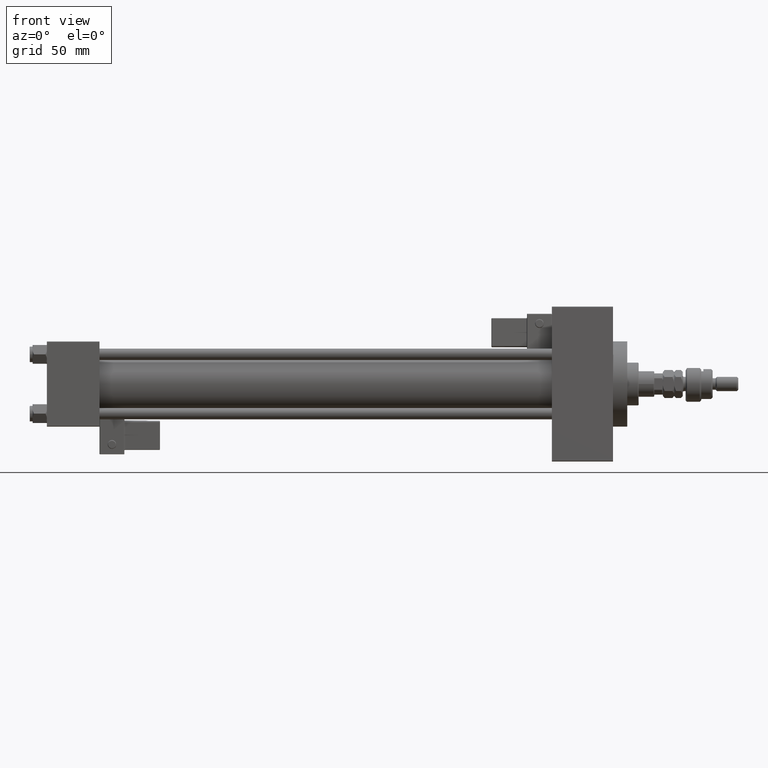
[diagram: clean part render]
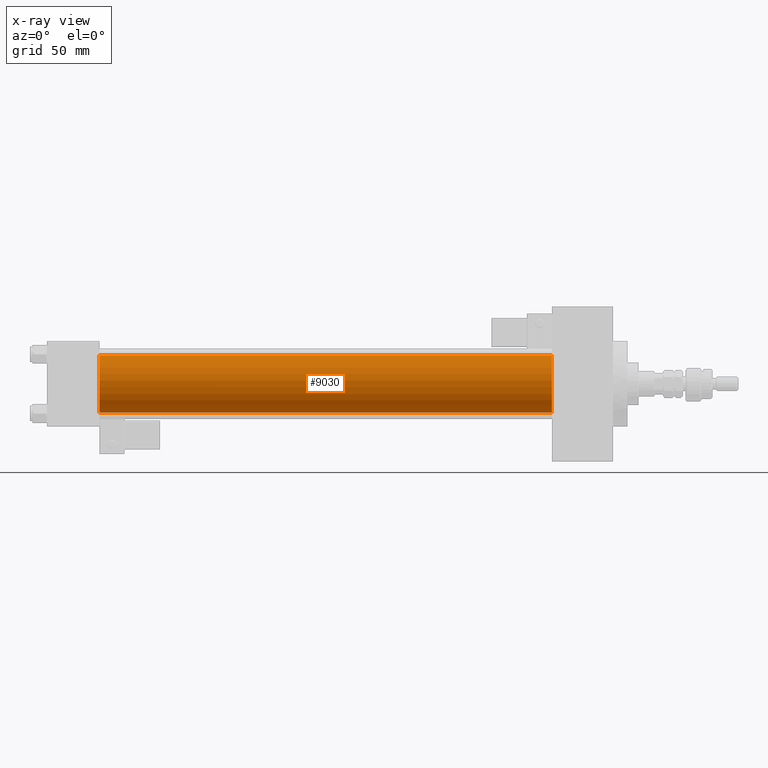
[diagram: x-ray — body ghosted, one internal face saturated and labeled with its STEP entity id]
A machine part, front view, then the same camera in x-ray: the body is ghosted and one INTERNAL B-rep face — a face not visible from any outside direction — is saturated and labeled: STEP entity #9030.
In plain terms, the highlighted cylindrical surface (edge-blend (fillet) strip) has radius 20 mm, axis along (-1, -0, -0).
Its self-contained STEP definition (entity closure, byte-faithful):
#81 = CARTESIAN_POINT ( 'NONE',  ( 355.0000000000000000, -2.602085213965210642E-15, 0.000000000000000000 ) ) ;
#1178 = EDGE_LOOP ( 'NONE', ( #40628, #31670, #28590, #48487 ) ) ;
#1850 = CARTESIAN_POINT ( 'NONE',  ( 355.0000000000000000, -1.527916156705046464E-16, -20.00000000000000000 ) ) ;
#2627 = EDGE_CURVE ( 'NONE', #32880, #49502, #15687, .T. ) ;
#4193 = DIRECTION ( 'NONE',  ( -1.000000000000000000, -0.000000000000000000, -0.000000000000000000 ) ) ;
#7221 = CARTESIAN_POINT ( 'NONE',  ( 355.0000000000000000, -2.602085213965210642E-15, 20.00000000000000000 ) ) ;
#9030 = ADVANCED_FACE ( 'NONE', ( #38249 ), #17357, .F. ) ;
#10563 = CARTESIAN_POINT ( 'NONE',  ( 37.00000000000000000, -2.602085213965210642E-15, 0.000000000000000000 ) ) ;
#12158 = AXIS2_PLACEMENT_3D ( 'NONE', #54218, #45965, #38277 ) ;
#12646 = CARTESIAN_POINT ( 'NONE',  ( 37.00000000000000000, -2.602085213965210642E-15, 20.00000000000000000 ) ) ;
#12963 = CARTESIAN_POINT ( 'NONE',  ( 37.00000000000000000, -1.527916156705046464E-16, -20.00000000000000000 ) ) ;
#13255 = VECTOR ( 'NONE', #47977, 1000.000000000000000 ) ;
#14137 = DIRECTION ( 'NONE',  ( 0.000000000000000000, 0.000000000000000000, -1.000000000000000000 ) ) ;
#15687 = CIRCLE ( 'NONE', #44610, 20.00000000000000000 ) ;
#17357 = CYLINDRICAL_SURFACE ( 'NONE', #23738, 20.00000000000000000 ) ;
#20316 = CARTESIAN_POINT ( 'NONE',  ( 355.0000000000000000, -2.602085213965210642E-15, 20.00000000000000000 ) ) ;
#23738 = AXIS2_PLACEMENT_3D ( 'NONE', #81, #4193, #34096 ) ;
#24901 = VERTEX_POINT ( 'NONE', #38857 ) ;
#25023 = VERTEX_POINT ( 'NONE', #7221 ) ;
#26510 = EDGE_CURVE ( 'NONE', #25023, #32880, #31626, .T. ) ;
#28590 = ORIENTED_EDGE ( 'NONE', *, *, #2627, .F. ) ;
#31070 = VECTOR ( 'NONE', #35506, 1000.000000000000000 ) ;
#31626 = LINE ( 'NONE', #20316, #31070 ) ;
#31670 = ORIENTED_EDGE ( 'NONE', *, *, #44940, .T. ) ;
#32880 = VERTEX_POINT ( 'NONE', #12646 ) ;
#34096 = DIRECTION ( 'NONE',  ( 0.000000000000000000, 0.000000000000000000, 1.000000000000000000 ) ) ;
#35506 = DIRECTION ( 'NONE',  ( -1.000000000000000000, -0.000000000000000000, -0.000000000000000000 ) ) ;
#38249 = FACE_OUTER_BOUND ( 'NONE', #1178, .T. ) ;
#38277 = DIRECTION ( 'NONE',  ( 0.000000000000000000, 0.000000000000000000, -1.000000000000000000 ) ) ;
#38857 = CARTESIAN_POINT ( 'NONE',  ( 355.0000000000000000, -1.527916156705046464E-16, -20.00000000000000000 ) ) ;
#39458 = LINE ( 'NONE', #1850, #13255 ) ;
#39671 = DIRECTION ( 'NONE',  ( 1.000000000000000000, 0.000000000000000000, 0.000000000000000000 ) ) ;
#39984 = EDGE_CURVE ( 'NONE', #25023, #24901, #45475, .T. ) ;
#40628 = ORIENTED_EDGE ( 'NONE', *, *, #39984, .T. ) ;
#44610 = AXIS2_PLACEMENT_3D ( 'NONE', #10563, #39671, #14137 ) ;
#44940 = EDGE_CURVE ( 'NONE', #24901, #49502, #39458, .T. ) ;
#45475 = CIRCLE ( 'NONE', #12158, 20.00000000000000000 ) ;
#45965 = DIRECTION ( 'NONE',  ( 1.000000000000000000, 0.000000000000000000, 0.000000000000000000 ) ) ;
#47977 = DIRECTION ( 'NONE',  ( -1.000000000000000000, -0.000000000000000000, -0.000000000000000000 ) ) ;
#48487 = ORIENTED_EDGE ( 'NONE', *, *, #26510, .F. ) ;
#49502 = VERTEX_POINT ( 'NONE', #12963 ) ;
#54218 = CARTESIAN_POINT ( 'NONE',  ( 355.0000000000000000, -2.602085213965210642E-15, 0.000000000000000000 ) ) ;